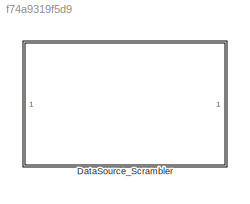
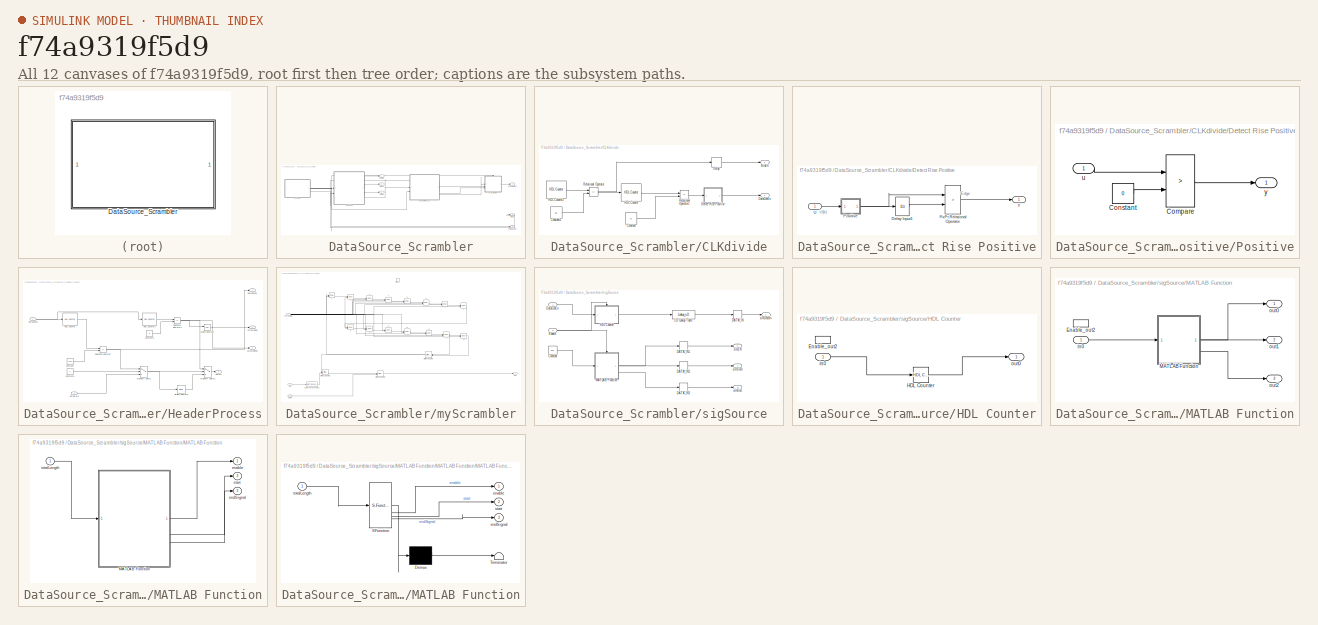
[diagram: thumbnail index - all 12 canvases of the model, root first then tree order]
MODEL slx_f74a9319f5d9
KIND model
CONFIG AbsTol = auto
CONFIG EnableMultiTasking = off
CONFIG FixedStep = auto
CONFIG MaxStep = auto
CONFIG MinStep = auto
CONFIG RelTol = 1e-3
CONFIG SampleTimeConstraint = Unconstrained
CONFIG SolverName = VariableStepAuto
CONFIG StartTime = 0.0
CONFIG StopTime = 10.0
BLOCK [SubSystem] DataSource_Scrambler
BLOCK [Outport] DataSource_Scrambler/BinEn
  Port = 5
  SampleTime = 5e-09
  VectorParamsAs1DForOutWhenUnconnected = off
BLOCK [SubSystem] DataSource_Scrambler/CLKdivide
BLOCK [Outport] DataSource_Scrambler/CLKdivide/BinEn
  Port = 2
  SampleTime = 5e-09
  VectorParamsAs1DForOutWhenUnconnected = off
BLOCK [Constant] DataSource_Scrambler/CLKdivide/Constant
  OutDataTypeStr = uint8
  SampleTime = -1
  Value = 8
  VectorParams1D = off
BLOCK [Constant] DataSource_Scrambler/CLKdivide/Constant1
  OutDataTypeStr = uint8
  SampleTime = -1
  Value = 25
  VectorParams1D = off
BLOCK [Outport] DataSource_Scrambler/CLKdivide/DataGenEn
  SampleTime = 5e-09
  VectorParamsAs1DForOutWhenUnconnected = off
BLOCK [Delay] DataSource_Scrambler/CLKdivide/Delay
  DelayLength = 1
  InputPortMap = u0
BLOCK [SubSystem] DataSource_Scrambler/CLKdivide/Detect Rise Positive
BLOCK [UnitDelay] DataSource_Scrambler/CLKdivide/Detect Rise Positive/Delay Input1
  Description = Store in Global RAM
  DisableCoverage = on
  HasFrameUpgradeWarning = on
  InitialCondition = vinit
  SampleTime = -1
BLOCK [RelationalOperator] DataSource_Scrambler/CLKdivide/Detect Rise Positive/FixPt Relational Operator
  InputSameDT = off
  Operator = >
  OutDataTypeStr = boolean
  ZeroCross = off
BLOCK [SubSystem] DataSource_Scrambler/CLKdivide/Detect Rise Positive/Positive
BLOCK [RelationalOperator] DataSource_Scrambler/CLKdivide/Detect Rise Positive/Positive/Compare
  Operator = >
  OutDataTypeStr = boolean
  ZeroCross = off
BLOCK [Constant] DataSource_Scrambler/CLKdivide/Detect Rise Positive/Positive/Constant
  DisableCoverage = on
  OutDataTypeStr = Inherit: Inherit via back propagation
  PreserveConstantTs = on
  SampleTime = -1
  Value = 0
BLOCK [Inport] DataSource_Scrambler/CLKdivide/Detect Rise Positive/Positive/u
  OutDataTypeStr = boolean
  SampleTime = 5e-09
BLOCK [Outport] DataSource_Scrambler/CLKdivide/Detect Rise Positive/Positive/y
  SampleTime = 5e-09
BLOCK [Inport] DataSource_Scrambler/CLKdivide/Detect Rise Positive/U
  OutDataTypeStr = boolean
  SampleTime = 5e-09
BLOCK [Outport] DataSource_Scrambler/CLKdivide/Detect Rise Positive/Y
  SampleTime = 5e-09
BLOCK [Reference] DataSource_Scrambler/CLKdivide/HDL Counter  REF=hdlsllib/Sources/HDL Counter
  SourceBlock = hdlsllib/Sources/HDL Counter
  SourceType = HDL Counter
BLOCK [Reference] DataSource_Scrambler/CLKdivide/HDL Counter2  REF=hdlsllib/Sources/HDL Counter
  SourceBlock = hdlsllib/Sources/HDL Counter
  SourceType = HDL Counter
BLOCK [RelationalOperator] DataSource_Scrambler/CLKdivide/Relational Operator
  InputSameDT = off
  Operator = ==
  OutDataTypeStr = boolean
BLOCK [RelationalOperator] DataSource_Scrambler/CLKdivide/Relational Operator1
  InputSameDT = off
  Operator = ==
  OutDataTypeStr = boolean
BLOCK [Outport] DataSource_Scrambler/DataGenEn
  Port = 6
  SampleTime = 5e-09
  VectorParamsAs1DForOutWhenUnconnected = off
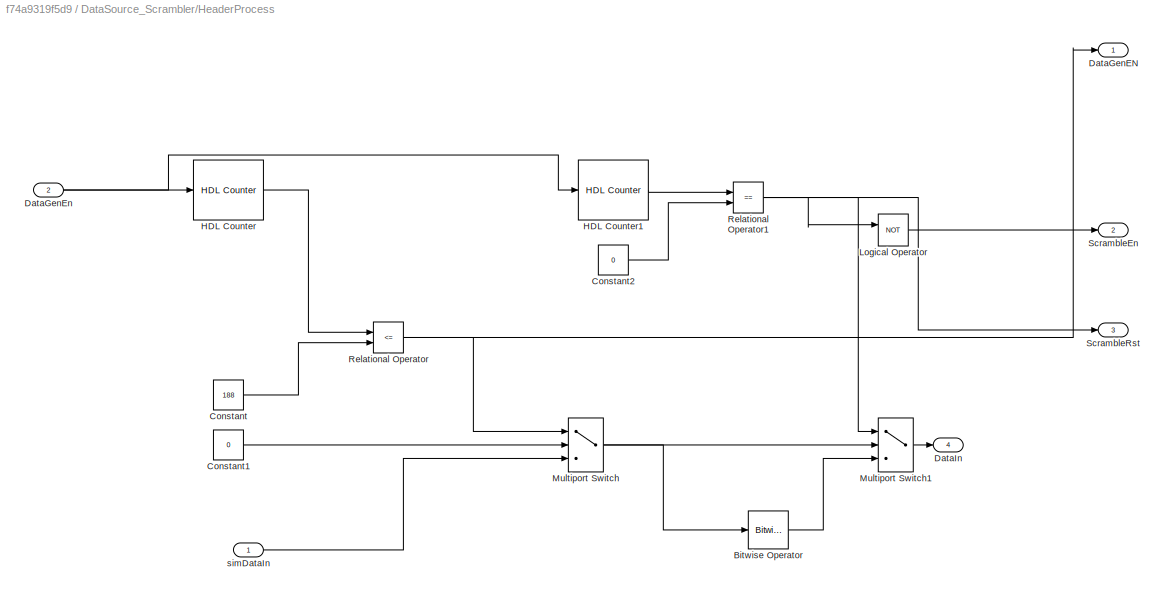
BLOCK [SubSystem] DataSource_Scrambler/HeaderProcess
BLOCK [Reference] DataSource_Scrambler/HeaderProcess/Bitwise Operator  REF=simulink/Logic and Bit
Operations/Bitwise
Operator
  SourceBlock = simulink/Logic and Bit\nOperations/Bitwise\nOperator
  SourceType = Bitwise Operator
BLOCK [Constant] DataSource_Scrambler/HeaderProcess/Constant
  OutDataTypeStr = uint8
  SampleTime = 1/fs
  Value = 188
BLOCK [Constant] DataSource_Scrambler/HeaderProcess/Constant1
  OutDataTypeStr = uint8
  Value = 0
BLOCK [Constant] DataSource_Scrambler/HeaderProcess/Constant2
  OutDataTypeStr = uint8
  Value = 0
BLOCK [Outport] DataSource_Scrambler/HeaderProcess/DataGenEN
  SampleTime = 5e-09
  VectorParamsAs1DForOutWhenUnconnected = off
BLOCK [Inport] DataSource_Scrambler/HeaderProcess/DataGenEn
  OutDataTypeStr = boolean
  Port = 2
  PortDimensions = 1
  SampleTime = 5e-09
BLOCK [Outport] DataSource_Scrambler/HeaderProcess/DataIn
  Port = 4
  SampleTime = 5e-09
BLOCK [Reference] DataSource_Scrambler/HeaderProcess/HDL Counter  REF=hdlsllib/Sources/HDL Counter
  SourceBlock = hdlsllib/Sources/HDL Counter
  SourceType = HDL Counter
BLOCK [Reference] DataSource_Scrambler/HeaderProcess/HDL Counter1  REF=hdlsllib/Sources/HDL Counter
  SourceBlock = hdlsllib/Sources/HDL Counter
  SourceType = HDL Counter
BLOCK [Logic] DataSource_Scrambler/HeaderProcess/Logical Operator
  AllPortsSameDT = off
  Operator = NOT
  OutDataTypeStr = boolean
BLOCK [MultiPortSwitch] DataSource_Scrambler/HeaderProcess/Multiport Switch
  DataPortIndices = {0,1}
  DataPortOrder = Specify indices
  InputSameDT = off
  OutDataTypeStr = uint8
  SaturateOnIntegerOverflow = off
BLOCK [MultiPortSwitch] DataSource_Scrambler/HeaderProcess/Multiport Switch1
  DataPortIndices = {0,1}
  DataPortOrder = Specify indices
  InputSameDT = off
  OutDataTypeStr = uint8
  SaturateOnIntegerOverflow = off
BLOCK [RelationalOperator] DataSource_Scrambler/HeaderProcess/Relational Operator
  InputSameDT = off
  Operator = <=
  OutDataTypeStr = boolean
BLOCK [RelationalOperator] DataSource_Scrambler/HeaderProcess/Relational Operator1
  InputSameDT = off
  Operator = ==
  OutDataTypeStr = boolean
BLOCK [Outport] DataSource_Scrambler/HeaderProcess/ScrambleEn
  Port = 2
  SampleTime = 5e-09
  VectorParamsAs1DForOutWhenUnconnected = off
BLOCK [Outport] DataSource_Scrambler/HeaderProcess/ScrambleRst
  Port = 3
  SampleTime = 5e-09
  VectorParamsAs1DForOutWhenUnconnected = off
BLOCK [Inport] DataSource_Scrambler/HeaderProcess/simDataIn
  OutDataTypeStr = uint8
  PortDimensions = 1
  SampleTime = 5e-09
BLOCK [Outport] DataSource_Scrambler/ScramblerOut
  Port = 4
  SampleTime = 5e-09
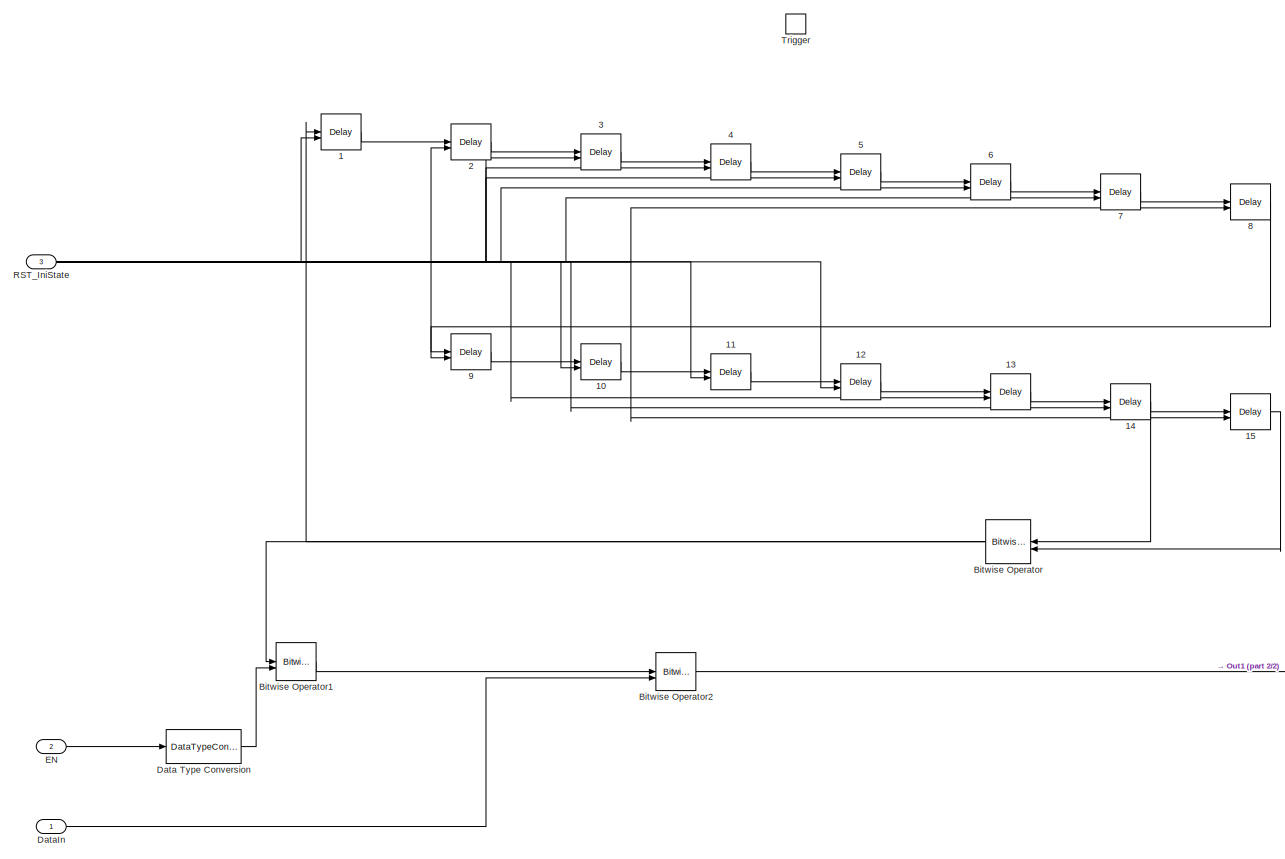
[diagram: DataSource_Scrambler/myScrambler - part 1/2, most of the canvas]
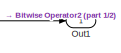
[diagram: DataSource_Scrambler/myScrambler - part 2/2, bottom right region]
BLOCK [SubSystem] DataSource_Scrambler/myScrambler
BLOCK [Delay] DataSource_Scrambler/myScrambler/1
  DelayLength = 1
  ExternalReset = Level
  InitialCondition = iniStates(1)
  InputPortMap = u0,r5
BLOCK [Delay] DataSource_Scrambler/myScrambler/10
  DelayLength = 1
  ExternalReset = Level
  InitialCondition = iniStates(10)
  InputPortMap = u0,r5
BLOCK [Delay] DataSource_Scrambler/myScrambler/11
  DelayLength = 1
  ExternalReset = Level
  InitialCondition = iniStates(11)
  InputPortMap = u0,r5
BLOCK [Delay] DataSource_Scrambler/myScrambler/12
  DelayLength = 1
  ExternalReset = Level
  InitialCondition = iniStates(12)
  InputPortMap = u0,r5
BLOCK [Delay] DataSource_Scrambler/myScrambler/13
  DelayLength = 1
  ExternalReset = Level
  InitialCondition = iniStates(13)
  InputPortMap = u0,r5
BLOCK [Delay] DataSource_Scrambler/myScrambler/14
  DelayLength = 1
  ExternalReset = Level
  InitialCondition = iniStates(14)
  InputPortMap = u0,r5
BLOCK [Delay] DataSource_Scrambler/myScrambler/15
  DelayLength = 1
  ExternalReset = Level
  InitialCondition = iniStates(15)
  InputPortMap = u0,r5
BLOCK [Delay] DataSource_Scrambler/myScrambler/2
  DelayLength = 1
  ExternalReset = Level
  InitialCondition = iniStates(2)
  InputPortMap = u0,r5
BLOCK [Delay] DataSource_Scrambler/myScrambler/3
  DelayLength = 1
  ExternalReset = Level
  InitialCondition = iniStates(3)
  InputPortMap = u0,r5
BLOCK [Delay] DataSource_Scrambler/myScrambler/4
  DelayLength = 1
  ExternalReset = Level
  InitialCondition = iniStates(4)
  InputPortMap = u0,r5
BLOCK [Delay] DataSource_Scrambler/myScrambler/5
  DelayLength = 1
  ExternalReset = Level
  InitialCondition = iniStates(5)
  InputPortMap = u0,r5
BLOCK [Delay] DataSource_Scrambler/myScrambler/6
  DelayLength = 1
  ExternalReset = Level
  InitialCondition = iniStates(6)
  InputPortMap = u0,r5
BLOCK [Delay] DataSource_Scrambler/myScrambler/7
  DelayLength = 1
  ExternalReset = Level
  InitialCondition = iniStates(7)
  InputPortMap = u0,r5
BLOCK [Delay] DataSource_Scrambler/myScrambler/8
  DelayLength = 1
  ExternalReset = Level
  InitialCondition = iniStates(8)
  InputPortMap = u0,r5
BLOCK [Delay] DataSource_Scrambler/myScrambler/9
  DelayLength = 1
  ExternalReset = Level
  InitialCondition = iniStates(9)
  InputPortMap = u0,r5
BLOCK [Reference] DataSource_Scrambler/myScrambler/Bitwise Operator  REF=simulink/Logic and Bit
Operations/Bitwise
Operator
  SourceBlock = simulink/Logic and Bit\nOperations/Bitwise\nOperator
  SourceType = Bitwise Operator
BLOCK [Reference] DataSource_Scrambler/myScrambler/Bitwise Operator1  REF=simulink/Logic and Bit
Operations/Bitwise
Operator
  SourceBlock = simulink/Logic and Bit\nOperations/Bitwise\nOperator
  SourceType = Bitwise Operator
BLOCK [Reference] DataSource_Scrambler/myScrambler/Bitwise Operator2  REF=simulink/Logic and Bit
Operations/Bitwise
Operator
  SourceBlock = simulink/Logic and Bit\nOperations/Bitwise\nOperator
  SourceType = Bitwise Operator
BLOCK [DataTypeConversion] DataSource_Scrambler/myScrambler/Data Type Conversion
  OutDataTypeStr = uint8
  RndMeth = Floor
  SaturateOnIntegerOverflow = off
BLOCK [Inport] DataSource_Scrambler/myScrambler/DataIn
  OutDataTypeStr = uint8
  PortDimensions = 1
BLOCK [Inport] DataSource_Scrambler/myScrambler/EN
  OutDataTypeStr = boolean
  Port = 2
  PortDimensions = 1
BLOCK [Outport] DataSource_Scrambler/myScrambler/Out1
  InitialOutput = 0
BLOCK [Inport] DataSource_Scrambler/myScrambler/RST_IniState
  OutDataTypeStr = boolean
  Port = 3
  PortDimensions = 1
BLOCK [TriggerPort] DataSource_Scrambler/myScrambler/Trigger
  OutDataTypeStr = boolean
  PortDimensions = 1
  StatesWhenEnabling = held
  VariantControl = (inherit)
BLOCK [SubSystem] DataSource_Scrambler/sigSource
BLOCK [Lookup_n-D] DataSource_Scrambler/sigSource/1-D Lookup Table
  BreakpointsForDimension1 = [0:18800-1]'
  BreakpointsForDimension1FirstPoint = 10
  BreakpointsForDimension1Spacing = 12
  BreakpointsForDimension2FirstPoint = 10
  BreakpointsForDimension2Spacing = 12
  IndexSearchMethod = Evenly spaced points
  InputPortMap = u0
  InternalRulePriority = Speed
  InterpMethod = Flat
  LookupTableObject = ''
  NumberOfTableDimensions = 1
  OutDataTypeStr = uint8
  RndMeth = Simplest
  Table = sourceData
BLOCK [Constant] DataSource_Scrambler/sigSource/Constant
  OutDataTypeStr = uint16
  SampleTime = 5e-09
  Value = 204
BLOCK [DataTypeConversion] DataSource_Scrambler/sigSource/DATA_IN
  OutDataTypeStr = fixdt(0,8,0)
BLOCK [DataTypeConversion] DataSource_Scrambler/sigSource/DATA_IN1
  OutDataTypeStr = boolean
  RndMeth = Floor
  SampleTime = 5e-09
  SaturateOnIntegerOverflow = off
BLOCK [DataTypeConversion] DataSource_Scrambler/sigSource/DATA_IN2
  OutDataTypeStr = boolean
  RndMeth = Floor
  SampleTime = 5e-09
  SaturateOnIntegerOverflow = off
BLOCK [DataTypeConversion] DataSource_Scrambler/sigSource/DATA_IN3
  OutDataTypeStr = boolean
  RndMeth = Floor
  SampleTime = 5e-09
  SaturateOnIntegerOverflow = off
BLOCK [Inport] DataSource_Scrambler/sigSource/DataGenEn
  OutDataTypeStr = boolean
  PortDimensions = 1
  SampleTime = 5e-09
BLOCK [Inport] DataSource_Scrambler/sigSource/Enable
  OutDataTypeStr = boolean
  Port = 2
  SampleTime = 5e-09
BLOCK [SubSystem] DataSource_Scrambler/sigSource/HDL Counter
  MinAlgLoopOccurrences = on
BLOCK [EnablePort] DataSource_Scrambler/sigSource/HDL Counter/Enable_out2
  OutDataTypeStr = boolean
BLOCK [Reference] DataSource_Scrambler/sigSource/HDL Counter/HDL Counter  REF=hdlsllib/Sources/HDL Counter
  SourceBlock = hdlsllib/Sources/HDL Counter
  SourceType = HDL Counter
BLOCK [Inport] DataSource_Scrambler/sigSource/HDL Counter/in0
  OutDataTypeStr = boolean
  SampleTime = 5e-09
BLOCK [Outport] DataSource_Scrambler/sigSource/HDL Counter/out0
  InitialOutput = 0
  OutDataTypeStr = uint32
  SampleTime = 5e-09
BLOCK [SubSystem] DataSource_Scrambler/sigSource/MATLAB Function
  MinAlgLoopOccurrences = on
BLOCK [EnablePort] DataSource_Scrambler/sigSource/MATLAB Function/Enable_out2
  OutDataTypeStr = boolean
BLOCK [SubSystem] DataSource_Scrambler/sigSource/MATLAB Function/MATLAB Function
BLOCK [SubSystem] DataSource_Scrambler/sigSource/MATLAB Function/MATLAB Function/MATLAB Function
  ErrorFcn = Stateflow.Translate.translate
  PermitHierarchicalResolution = ExplicitOnly
  SFBlockType = MATLAB Function
  TreatAsAtomicUnit = on
BLOCK [Demux] DataSource_Scrambler/sigSource/MATLAB Function/MATLAB Function/MATLAB Function/ Demux 
  Outputs = 1
BLOCK [S-Function] DataSource_Scrambler/sigSource/MATLAB Function/MATLAB Function/MATLAB Function/ SFunction 
  EnableBusSupport = on
  FunctionName = sf_sfun
  PortCounts = [1 4]
  SFcnIsStateOwnerBlock = off
  SFunctionDeploymentMode = off
  Tag = Stateflow S-Function 5
BLOCK [Terminator] DataSource_Scrambler/sigSource/MATLAB Function/MATLAB Function/MATLAB Function/ Terminator 
BLOCK [Outport] DataSource_Scrambler/sigSource/MATLAB Function/MATLAB Function/MATLAB Function/enable
  VectorParamsAs1DForOutWhenUnconnected = off
BLOCK [Outport] DataSource_Scrambler/sigSource/MATLAB Function/MATLAB Function/MATLAB Function/endSignal
  Port = 3
BLOCK [Outport] DataSource_Scrambler/sigSource/MATLAB Function/MATLAB Function/MATLAB Function/start
  Port = 2
BLOCK [Inport] DataSource_Scrambler/sigSource/MATLAB Function/MATLAB Function/MATLAB Function/totalLength
BLOCK [Outport] DataSource_Scrambler/sigSource/MATLAB Function/MATLAB Function/enable
  InitialOutput = 0
  SampleTime = 5e-09
  VectorParamsAs1DForOutWhenUnconnected = off
BLOCK [Outport] DataSource_Scrambler/sigSource/MATLAB Function/MATLAB Function/endSignal
  InitialOutput = 0
  Port = 3
  SampleTime = 5e-09
BLOCK [Outport] DataSource_Scrambler/sigSource/MATLAB Function/MATLAB Function/start
  InitialOutput = 0
  Port = 2
  SampleTime = 5e-09
BLOCK [Inport] DataSource_Scrambler/sigSource/MATLAB Function/MATLAB Function/totalLength
  OutDataTypeStr = uint16
  PortDimensions = 1
  SampleTime = 5e-09
BLOCK [Inport] DataSource_Scrambler/sigSource/MATLAB Function/in0
  OutDataTypeStr = uint16
  SampleTime = 5e-09
BLOCK [Outport] DataSource_Scrambler/sigSource/MATLAB Function/out0
  InitialOutput = 0
  OutDataTypeStr = uint8
  SampleTime = 5e-09
BLOCK [Outport] DataSource_Scrambler/sigSource/MATLAB Function/out1
  InitialOutput = 0
  OutDataTypeStr = uint8
  Port = 2
  SampleTime = 5e-09
BLOCK [Outport] DataSource_Scrambler/sigSource/MATLAB Function/out2
  InitialOutput = 0
  OutDataTypeStr = uint8
  Port = 3
  SampleTime = 5e-09
BLOCK [Outport] DataSource_Scrambler/sigSource/simDataIn
  InitialOutput = 0
  Port = 4
  SampleTime = 5e-09
BLOCK [Outport] DataSource_Scrambler/sigSource/simEN
  InitialOutput = 0
  Port = 3
  SampleTime = 5e-09
BLOCK [Outport] DataSource_Scrambler/sigSource/simEnd
  InitialOutput = 0
  Port = 2
  SampleTime = 5e-09
BLOCK [Outport] DataSource_Scrambler/sigSource/simStart
  InitialOutput = 0
  SampleTime = 5e-09
BLOCK [Outport] DataSource_Scrambler/simEN
  Port = 3
  SampleTime = 5e-09
BLOCK [Outport] DataSource_Scrambler/simEnd
  Port = 2
  SampleTime = 5e-09
BLOCK [Outport] DataSource_Scrambler/simStart
  SampleTime = 5e-09
ANNOTATION DataSource_Scrambler/CLKdivide/Detect Rise Positive: Edge
ANNOTATION DataSource_Scrambler/CLKdivide/Detect Rise Positive: U(k)
LINE DataSource_Scrambler/CLKdivide/Constant1:1 -> DataSource_Scrambler/CLKdivide/Relational Operator:2
LINE DataSource_Scrambler/CLKdivide/Constant:1 -> DataSource_Scrambler/CLKdivide/Relational Operator1:2
LINE DataSource_Scrambler/CLKdivide/Delay:1 -> DataSource_Scrambler/CLKdivide/BinEn:1
LINE DataSource_Scrambler/CLKdivide/Detect Rise Positive:1 -> DataSource_Scrambler/CLKdivide/DataGenEn:1
LINE DataSource_Scrambler/CLKdivide/HDL Counter2:1 -> DataSource_Scrambler/CLKdivide/Relational Operator:1
LINE DataSource_Scrambler/CLKdivide/HDL Counter:1 -> DataSource_Scrambler/CLKdivide/Relational Operator1:1
LINE DataSource_Scrambler/CLKdivide/Relational Operator1:1 -> DataSource_Scrambler/CLKdivide/Detect Rise Positive:1
NET DataSource_Scrambler/CLKdivide/Relational Operator:1 -> DataSource_Scrambler/CLKdivide/Delay:1, DataSource_Scrambler/CLKdivide/HDL Counter:1
NET DataSource_Scrambler/CLKdivide:1 -> DataSource_Scrambler/DataGenEn:1, DataSource_Scrambler/HeaderProcess:2, DataSource_Scrambler/myScrambler:trigger, DataSource_Scrambler/sigSource:1
LINE DataSource_Scrambler/CLKdivide:2 -> DataSource_Scrambler/BinEn:1
LINE DataSource_Scrambler/HeaderProcess/Bitwise Operator:1 -> DataSource_Scrambler/HeaderProcess/Multiport Switch1:3
LINE DataSource_Scrambler/HeaderProcess/Constant1:1 -> DataSource_Scrambler/HeaderProcess/Multiport Switch:2
LINE DataSource_Scrambler/HeaderProcess/Constant2:1 -> DataSource_Scrambler/HeaderProcess/Relational Operator1:2
LINE DataSource_Scrambler/HeaderProcess/Constant:1 -> DataSource_Scrambler/HeaderProcess/Relational Operator:2
NET DataSource_Scrambler/HeaderProcess/DataGenEn:1 -> DataSource_Scrambler/HeaderProcess/HDL Counter1:1, DataSource_Scrambler/HeaderProcess/HDL Counter:1
LINE DataSource_Scrambler/HeaderProcess/HDL Counter1:1 -> DataSource_Scrambler/HeaderProcess/Relational Operator1:1
LINE DataSource_Scrambler/HeaderProcess/HDL Counter:1 -> DataSource_Scrambler/HeaderProcess/Relational Operator:1
LINE DataSource_Scrambler/HeaderProcess/Logical Operator:1 -> DataSource_Scrambler/HeaderProcess/ScrambleEn:1
LINE DataSource_Scrambler/HeaderProcess/Multiport Switch1:1 -> DataSource_Scrambler/HeaderProcess/DataIn:1
NET DataSource_Scrambler/HeaderProcess/Multiport Switch:1 -> DataSource_Scrambler/HeaderProcess/Bitwise Operator:1, DataSource_Scrambler/HeaderProcess/Multiport Switch1:2
NET DataSource_Scrambler/HeaderProcess/Relational Operator1:1 -> DataSource_Scrambler/HeaderProcess/Logical Operator:1, DataSource_Scrambler/HeaderProcess/Multiport Switch1:1, DataSource_Scrambler/HeaderProcess/ScrambleRst:1
NET DataSource_Scrambler/HeaderProcess/Relational Operator:1 -> DataSource_Scrambler/HeaderProcess/DataGenEN:1, DataSource_Scrambler/HeaderProcess/Multiport Switch:1
LINE DataSource_Scrambler/HeaderProcess/simDataIn:1 -> DataSource_Scrambler/HeaderProcess/Multiport Switch:3
LINE DataSource_Scrambler/HeaderProcess:1 -> DataSource_Scrambler/sigSource:2
LINE DataSource_Scrambler/HeaderProcess:2 -> DataSource_Scrambler/myScrambler:2
LINE DataSource_Scrambler/HeaderProcess:3 -> DataSource_Scrambler/myScrambler:3
LINE DataSource_Scrambler/HeaderProcess:4 -> DataSource_Scrambler/myScrambler:1
LINE DataSource_Scrambler/myScrambler/10:1 -> DataSource_Scrambler/myScrambler/11:1
LINE DataSource_Scrambler/myScrambler/11:1 -> DataSource_Scrambler/myScrambler/12:1
LINE DataSource_Scrambler/myScrambler/12:1 -> DataSource_Scrambler/myScrambler/13:1
LINE DataSource_Scrambler/myScrambler/13:1 -> DataSource_Scrambler/myScrambler/14:1
NET DataSource_Scrambler/myScrambler/14:1 -> DataSource_Scrambler/myScrambler/15:1, DataSource_Scrambler/myScrambler/Bitwise Operator:1
LINE DataSource_Scrambler/myScrambler/15:1 -> DataSource_Scrambler/myScrambler/Bitwise Operator:2
LINE DataSource_Scrambler/myScrambler/1:1 -> DataSource_Scrambler/myScrambler/2:1
LINE DataSource_Scrambler/myScrambler/2:1 -> DataSource_Scrambler/myScrambler/3:1
LINE DataSource_Scrambler/myScrambler/3:1 -> DataSource_Scrambler/myScrambler/4:1
LINE DataSource_Scrambler/myScrambler/4:1 -> DataSource_Scrambler/myScrambler/5:1
LINE DataSource_Scrambler/myScrambler/5:1 -> DataSource_Scrambler/myScrambler/6:1
LINE DataSource_Scrambler/myScrambler/6:1 -> DataSource_Scrambler/myScrambler/7:1
LINE DataSource_Scrambler/myScrambler/7:1 -> DataSource_Scrambler/myScrambler/8:1
LINE DataSource_Scrambler/myScrambler/8:1 -> DataSource_Scrambler/myScrambler/9:1
LINE DataSource_Scrambler/myScrambler/9:1 -> DataSource_Scrambler/myScrambler/10:1
LINE DataSource_Scrambler/myScrambler/Bitwise Operator1:1 -> DataSource_Scrambler/myScrambler/Bitwise Operator2:1
LINE DataSource_Scrambler/myScrambler/Bitwise Operator2:1 -> DataSource_Scrambler/myScrambler/Out1:1
NET DataSource_Scrambler/myScrambler/Bitwise Operator:1 -> DataSource_Scrambler/myScrambler/1:1, DataSource_Scrambler/myScrambler/Bitwise Operator1:1
LINE DataSource_Scrambler/myScrambler/Data Type Conversion:1 -> DataSource_Scrambler/myScrambler/Bitwise Operator1:2
LINE DataSource_Scrambler/myScrambler/DataIn:1 -> DataSource_Scrambler/myScrambler/Bitwise Operator2:2
LINE DataSource_Scrambler/myScrambler/EN:1 -> DataSource_Scrambler/myScrambler/Data Type Conversion:1
NET DataSource_Scrambler/myScrambler/RST_IniState:1 -> DataSource_Scrambler/myScrambler/10:2, DataSource_Scrambler/myScrambler/11:2, DataSource_Scrambler/myScrambler/12:2, DataSource_Scrambler/myScrambler/13:2, DataSource_Scrambler/myScrambler/14:2, DataSource_Scrambler/myScrambler/15:2, DataSource_Scrambler/myScrambler/1:2, DataSource_Scrambler/myScrambler/2:2, DataSource_Scrambler/myScrambler/3:2, DataSource_Scrambler/myScrambler/4:2, DataSource_Scrambler/myScrambler/5:2, DataSource_Scrambler/myScrambler/6:2, DataSource_Scrambler/myScrambler/7:2, DataSource_Scrambler/myScrambler/8:2, DataSource_Scrambler/myScrambler/9:2
LINE DataSource_Scrambler/myScrambler:1 -> DataSource_Scrambler/ScramblerOut:1
LINE DataSource_Scrambler/sigSource/1-D Lookup Table:1 -> DataSource_Scrambler/sigSource/DATA_IN:1
LINE DataSource_Scrambler/sigSource/Constant:1 -> DataSource_Scrambler/sigSource/MATLAB Function:1
LINE DataSource_Scrambler/sigSource/DATA_IN1:1 -> DataSource_Scrambler/sigSource/simEN:1
LINE DataSource_Scrambler/sigSource/DATA_IN2:1 -> DataSource_Scrambler/sigSource/simStart:1
LINE DataSource_Scrambler/sigSource/DATA_IN3:1 -> DataSource_Scrambler/sigSource/simEnd:1
LINE DataSource_Scrambler/sigSource/DATA_IN:1 -> DataSource_Scrambler/sigSource/simDataIn:1
LINE DataSource_Scrambler/sigSource/DataGenEn:1 -> DataSource_Scrambler/sigSource/HDL Counter:1
NET DataSource_Scrambler/sigSource/Enable:1 -> DataSource_Scrambler/sigSource/HDL Counter:enable, DataSource_Scrambler/sigSource/MATLAB Function:enable
LINE DataSource_Scrambler/sigSource/HDL Counter/HDL Counter:1 -> DataSource_Scrambler/sigSource/HDL Counter/out0:1
LINE DataSource_Scrambler/sigSource/HDL Counter/in0:1 -> DataSource_Scrambler/sigSource/HDL Counter/HDL Counter:1
LINE DataSource_Scrambler/sigSource/HDL Counter:1 -> DataSource_Scrambler/sigSource/1-D Lookup Table:1
LINE DataSource_Scrambler/sigSource/MATLAB Function/MATLAB Function/MATLAB Function:1 -> DataSource_Scrambler/sigSource/MATLAB Function/MATLAB Function/enable:1
LINE DataSource_Scrambler/sigSource/MATLAB Function/MATLAB Function/MATLAB Function:2 -> DataSource_Scrambler/sigSource/MATLAB Function/MATLAB Function/start:1
LINE DataSource_Scrambler/sigSource/MATLAB Function/MATLAB Function/MATLAB Function:3 -> DataSource_Scrambler/sigSource/MATLAB Function/MATLAB Function/endSignal:1
LINE DataSource_Scrambler/sigSource/MATLAB Function/MATLAB Function/totalLength:1 -> DataSource_Scrambler/sigSource/MATLAB Function/MATLAB Function/MATLAB Function:1
LINE DataSource_Scrambler/sigSource/MATLAB Function/MATLAB Function:1 -> DataSource_Scrambler/sigSource/MATLAB Function/out0:1
LINE DataSource_Scrambler/sigSource/MATLAB Function/MATLAB Function:2 -> DataSource_Scrambler/sigSource/MATLAB Function/out1:1
LINE DataSource_Scrambler/sigSource/MATLAB Function/MATLAB Function:3 -> DataSource_Scrambler/sigSource/MATLAB Function/out2:1
LINE DataSource_Scrambler/sigSource/MATLAB Function/in0:1 -> DataSource_Scrambler/sigSource/MATLAB Function/MATLAB Function:1
LINE DataSource_Scrambler/sigSource/MATLAB Function:1 -> DataSource_Scrambler/sigSource/DATA_IN1:1
LINE DataSource_Scrambler/sigSource/MATLAB Function:2 -> DataSource_Scrambler/sigSource/DATA_IN2:1
LINE DataSource_Scrambler/sigSource/MATLAB Function:3 -> DataSource_Scrambler/sigSource/DATA_IN3:1
LINE DataSource_Scrambler/sigSource:1 -> DataSource_Scrambler/simStart:1
LINE DataSource_Scrambler/sigSource:2 -> DataSource_Scrambler/simEnd:1
LINE DataSource_Scrambler/sigSource:3 -> DataSource_Scrambler/simEN:1
LINE DataSource_Scrambler/sigSource:4 -> DataSource_Scrambler/HeaderProcess:1
note: NET lines group one-source signal fan-out (src -> all destinations, sorted); 1:1 wires keep LINE
CHART DataSource_Scrambler/sigSource/MATLAB Function/MATLAB Function/MATLAB Function states=1 transitions=1
  STATE_LABEL 'eML_blk_kernel()'
  STATE_LABEL 'SCRIPT:\nfunction [enable, start, endSignal] = rsSignals(totalLength)\n    % rsSignals Generate enable, start, and end signals for RS(188,204)\n    %\n    % Input:\n    %   totalLength - Total number of cycles the signals are active\n    %\n    % Output:\n    %   enable - Enable signal (1 during transmission, 0 otherwise) as uint8\n    %   start - Start signal (1 at the first cycle, 0 otherwise) as uint8\n ...<+807ch>'
CHART  states=0 transitions=0
